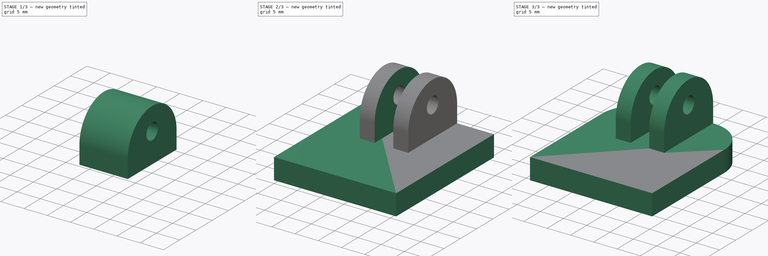
[diagram: build sequence overview — one tinted view per stage of 3, left to right]
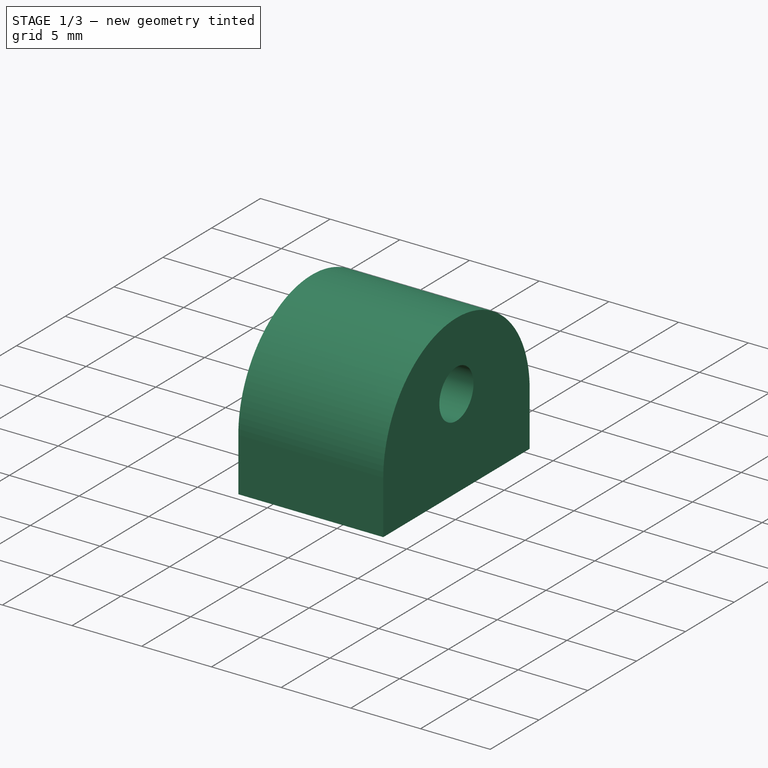
[diagram: stage 1 of 3 — iso view after this stage's code; geometry added in this stage tinted green]
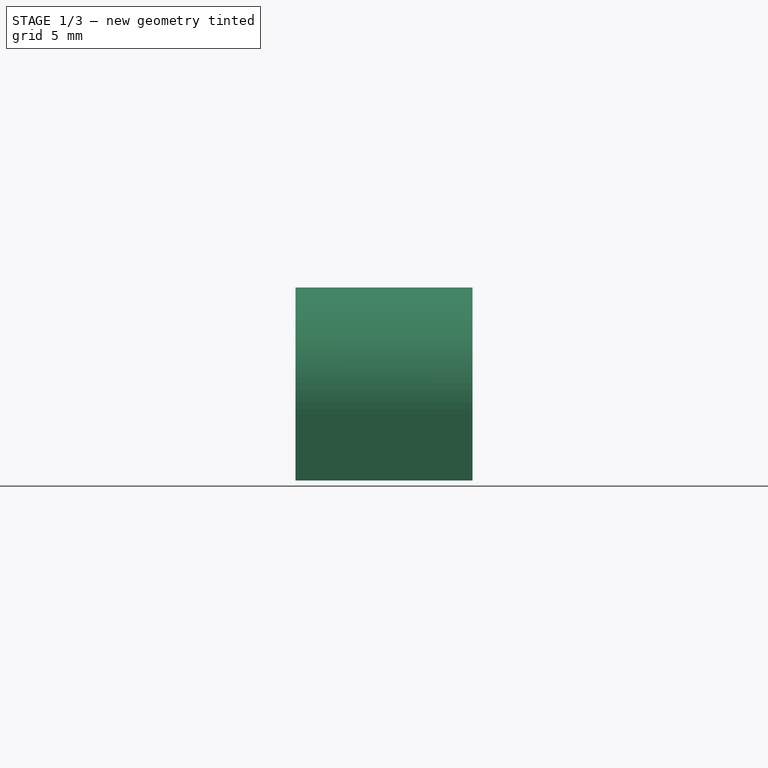
[diagram: stage 1 of 3 — front view after this stage's code; geometry added in this stage tinted green]
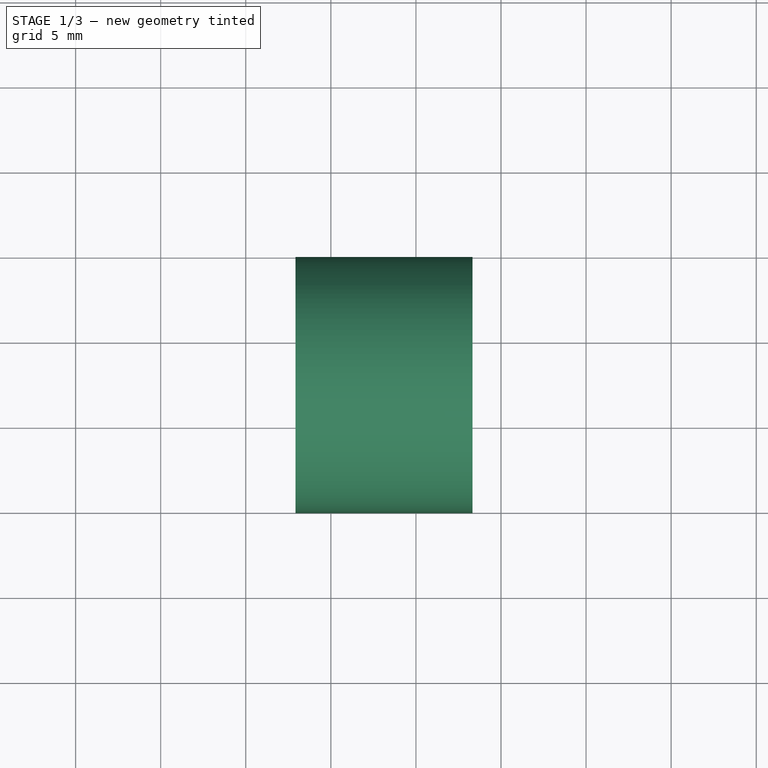
[diagram: stage 1 of 3 — top view after this stage's code; geometry added in this stage tinted green]
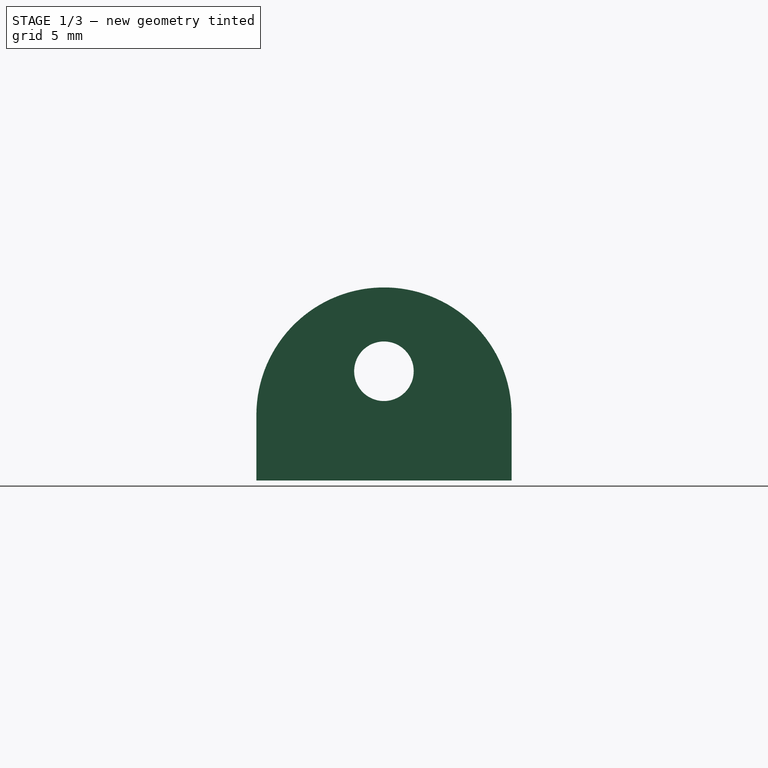
[diagram: stage 1 of 3 — right view after this stage's code; geometry added in this stage tinted green]
FCSTD DOCUMENT  (FreeCAD 0.16R6712 (Git))
Label: tapa_camaraIR
License: CreativeCommons Attribution-ShareAlike
LicenseURL: http://creativecommons.org/licenses/by-sa/4.0/
objects: Part::Feature×3, Part::Box×2, Part::Cut×2, Sketcher::SketchObject×1, PartDesign::Pad×1, Part::FeaturePython×1, Part::MultiFuse×1, Part::Fillet×1
note: 13 computed .brp shape members not serialized (recipe doc carries the construction recipe); baked Part::Feature solids carry a one-line shape summary decoded from their .brp

FEATURE [Part::Feature] Fusion002
  shape: bbox 26.25 x 15 x 15.5 mm, 140 faces (baked)
FEATURE [Sketcher::SketchObject] Sketch001
  Placement = pos=(0,0,0) rot=(0.57735,0.57735,0.57735;2.0944rad)
  sketch-geometry (6):
    g0: ArcOfCircle CenterX=-12.6861 CenterY=10.2241 CenterZ=0 NormalX=0 NormalY=0 NormalZ=1 Radius=7.5 StartAngle=6.28319 EndAngle=9.42478
    g1: LineSegment StartX=-5.18611 StartY=10.2241 StartZ=0 EndX=-5.18611 EndY=6.37409 EndZ=0
    g2: LineSegment StartX=-20.1861 StartY=6.37409 StartZ=0 EndX=-20.1861 EndY=10.2241 EndZ=0
    g3: LineSegment StartX=-20.1861 StartY=6.37409 StartZ=0 EndX=-5.18611 EndY=6.37409 EndZ=0
    g4: Circle CenterX=-12.6907 CenterY=12.7964 CenterZ=0 NormalX=0 NormalY=0 NormalZ=1 Radius=1.75
    g5: LineSegment [constr] StartX=-12.6861 StartY=5.56783 StartZ=0 EndX=-12.6861 EndY=16.7204 EndZ=0
  constraints (16):
    c: Radius(g0) = 7.5
    c: Vertical(g1)
    c: Coincident(g2,g0)
    c: Coincident(g3,g1)
    c: Horizontal(g3)
    c: Coincident(g1,g0)
    c: Equal(g2,g1)
    c: Vertical(g2)
    c: Coincident(g2,g3)
    c: DistanceX(g3,g3) = 15
    c: DistanceY(g1,g0) = 3.85
    c: DistanceX(g1,g-1) = 5.18611
    c: DistanceY(g-1,g1) = 6.37409
    c: Radius(g4) = 1.75
    c: Vertical(g5)
    c: PointOnObject(g0,g5)
FEATURE [PartDesign::Pad] Pad
  Length = 10.4
  Length2 = 100
  Placement = pos=(0,0,0) rot=(0.57735,0.57735,0.57735;2.0944rad)
  Sketch = -> Sketch001
  Type = 0
FEATURE [Part::FeaturePython] Clone  label="Clone of Pad"  # Draft clone (typed FeaturePython)
  Objects = -> [Pad]
  Placement = pos=(7.924,30.1861,-1.87209) rot=(0.57735,0.57735,0.57735;2.0944rad)
  Scale = (1,1,1)
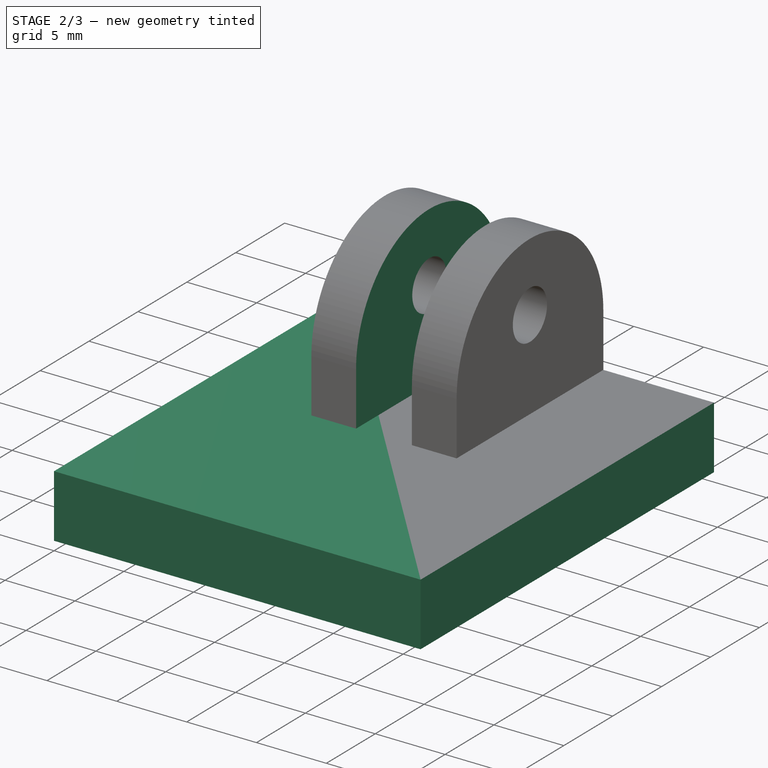
[diagram: stage 2 of 3 — iso view after this stage's code; geometry added in this stage tinted green]
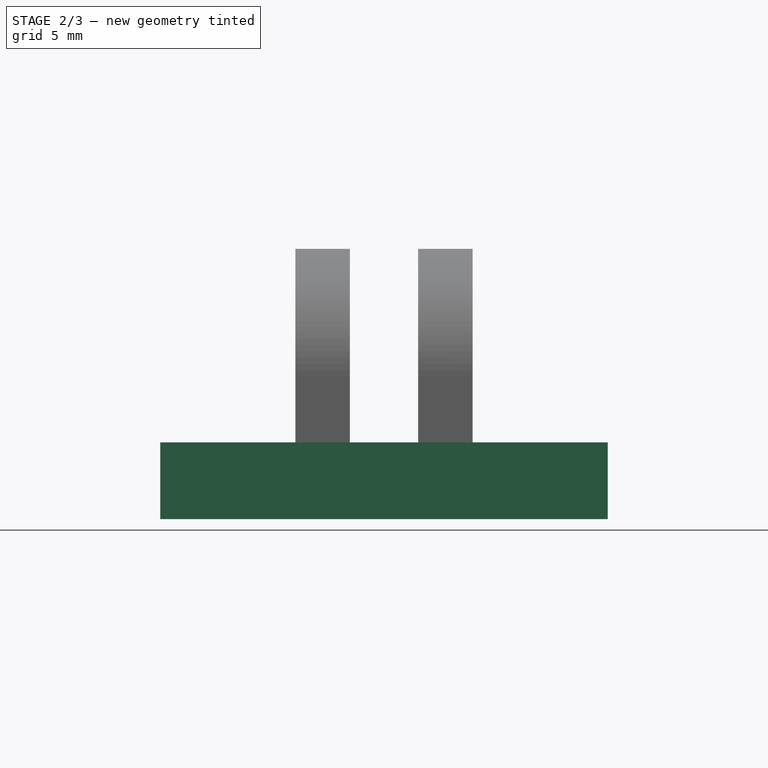
[diagram: stage 2 of 3 — front view after this stage's code; geometry added in this stage tinted green]
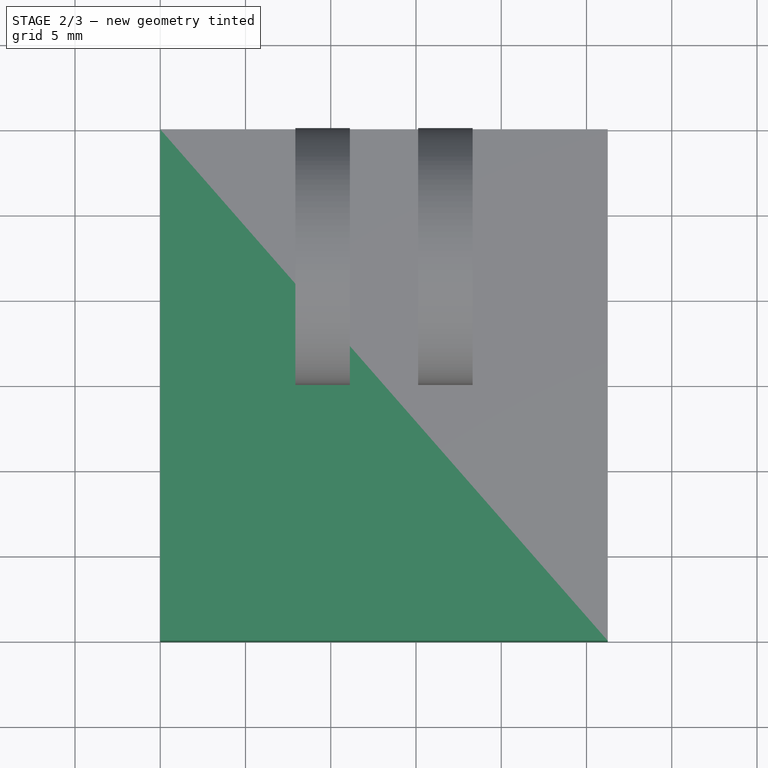
[diagram: stage 2 of 3 — top view after this stage's code; geometry added in this stage tinted green]
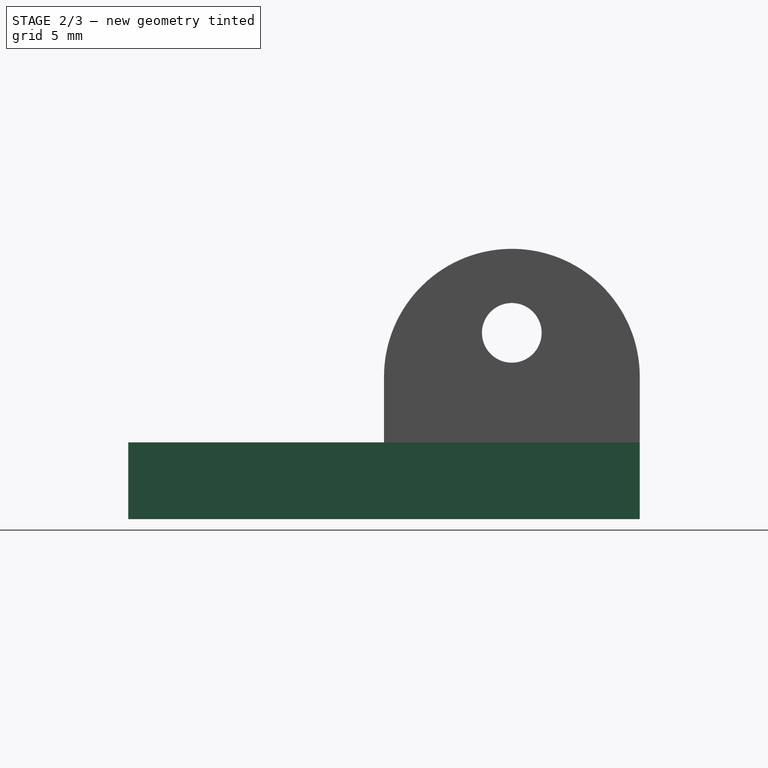
[diagram: stage 2 of 3 — right view after this stage's code; geometry added in this stage tinted green]
FEATURE [Part::Box] Box  label="Cubo"
  Height = 20
  Length = 4
  Placement = pos=(11.124,9,1.502) rot=(0,0,1;0rad)
  Width = 20
FEATURE [Part::Box] Box001  label="Cubo001"
  Height = 4.502
  Length = 26.248
  Placement = pos=(0,-5,0) rot=(0,0,1;0rad)
  Width = 30
FEATURE [Part::Cut] Cut
  Base = -> Clone
  Tool = -> Box
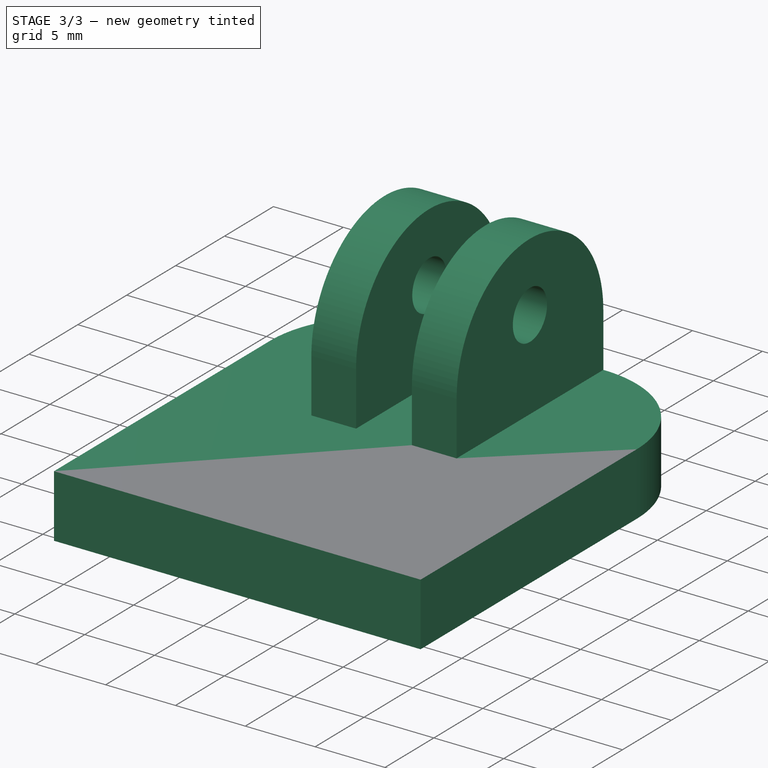
[diagram: stage 3 of 3 — iso view after this stage's code; geometry added in this stage tinted green]
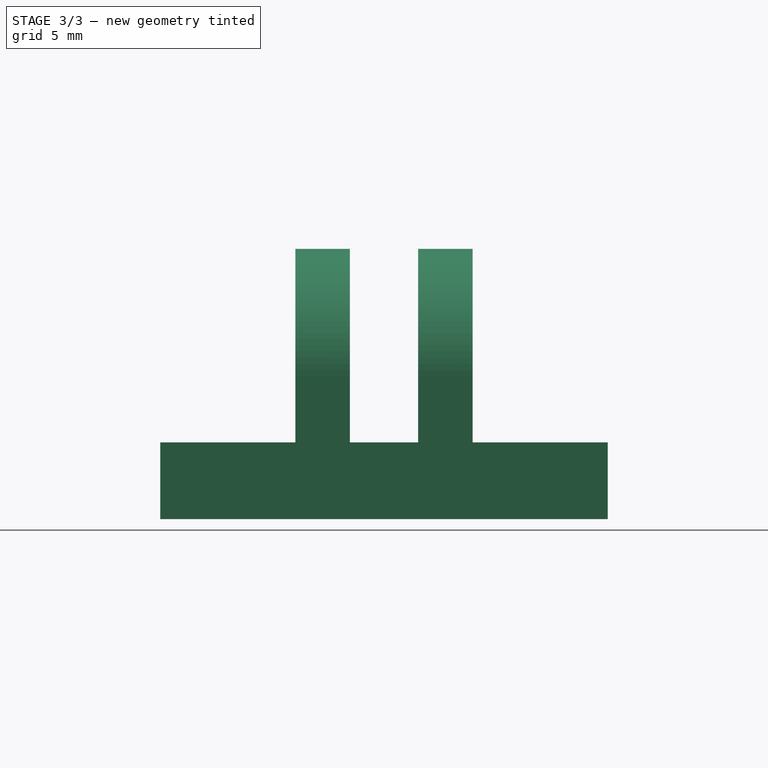
[diagram: stage 3 of 3 — front view after this stage's code; geometry added in this stage tinted green]
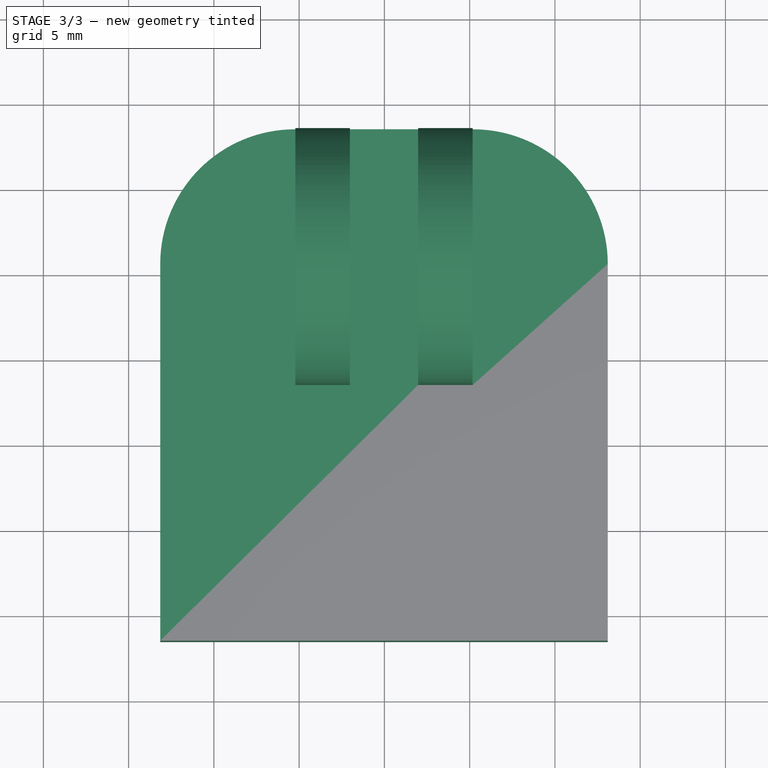
[diagram: stage 3 of 3 — top view after this stage's code; geometry added in this stage tinted green]
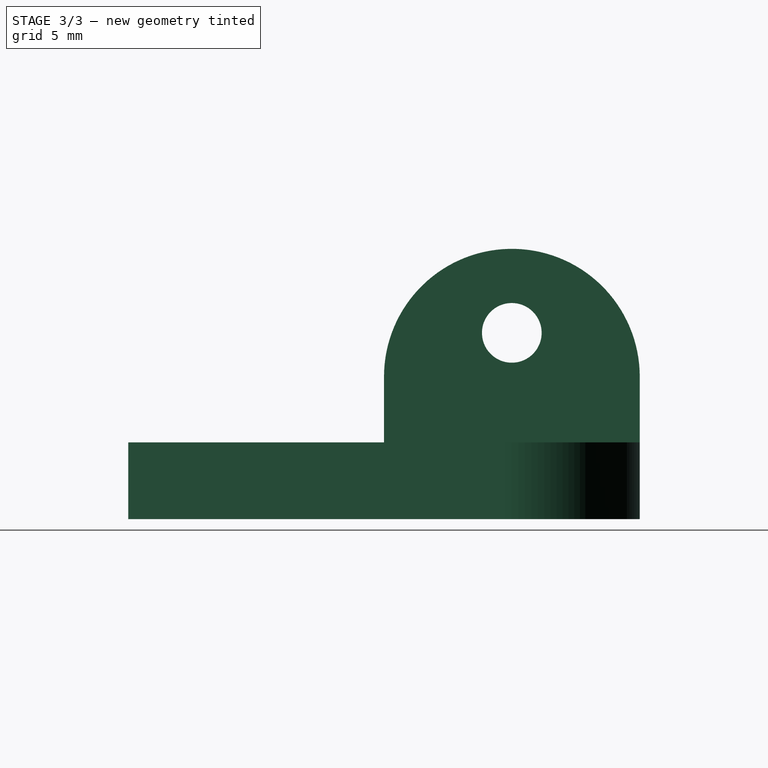
[diagram: stage 3 of 3 — right view after this stage's code; geometry added in this stage tinted green]
FEATURE [Part::MultiFuse] Fusion
  Shapes = -> [Cut,Box001]
FEATURE [Part::Fillet] Fillet
  Base = -> Fusion
  Edges = 2 edges r=7.9: [Edge3,Edge19]
  Placement = pos=(-13.1482,13.5,-1.44958e-07) rot=(0,0,1;0rad)
FEATURE [Part::Feature] Fusion001001  label="Fusion003"
  shape: bbox 76.35 x 34.11 x 4.502 mm, 855 faces (baked)
FEATURE [Part::Cut] Cut001  label="raspiCamTapa"
  Base = -> Fusion001001
  Tool = -> Fillet
FEATURE [Part::Feature] Cut001001  label="csRaspiCamTapa"
  shape: bbox 76.35 x 63.12 x 15.85 mm, 877 faces (baked)
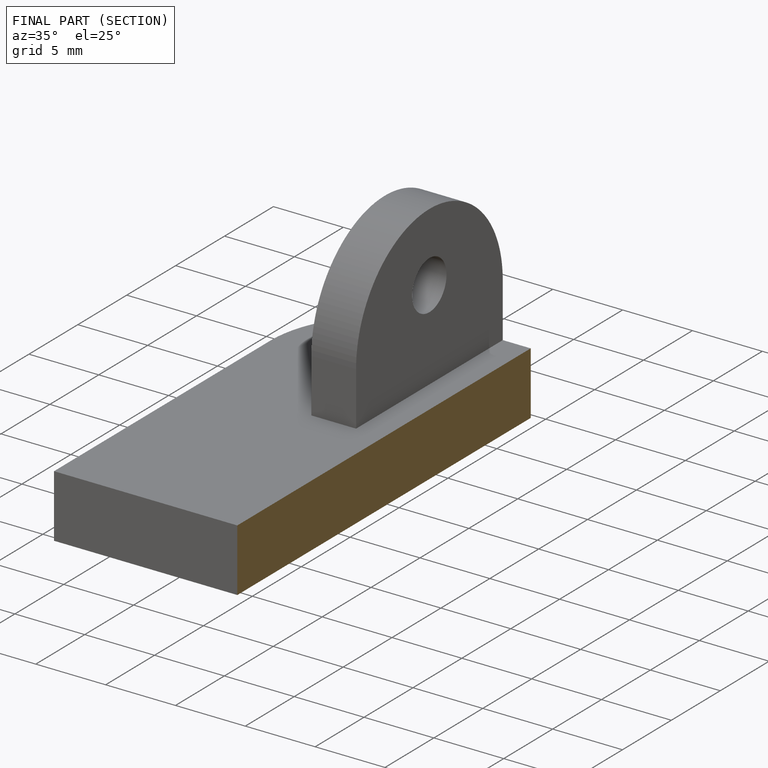
[diagram: finished part — half-section view (interior)]
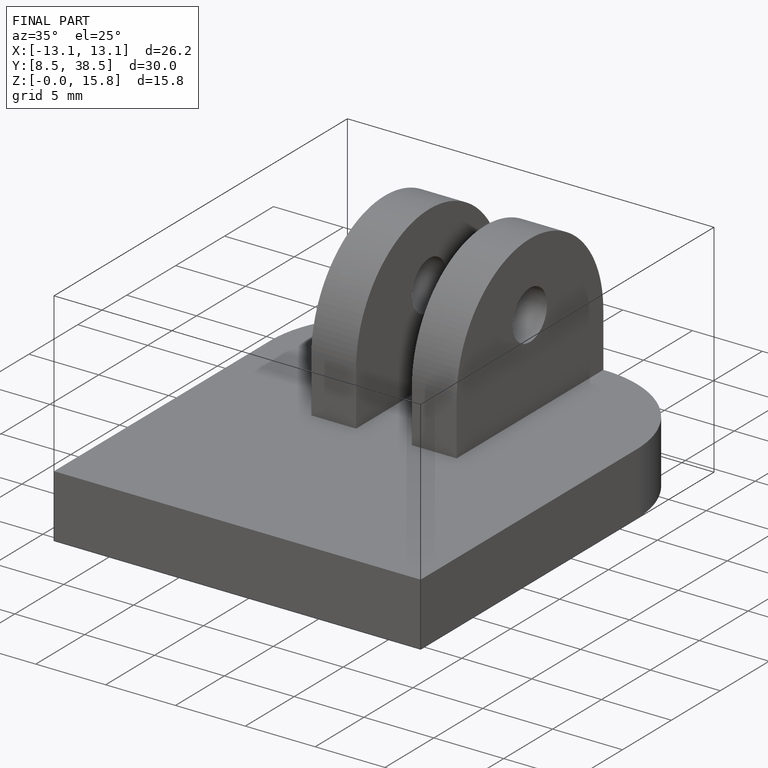
[diagram: finished part — iso view with bounding-box wireframe]
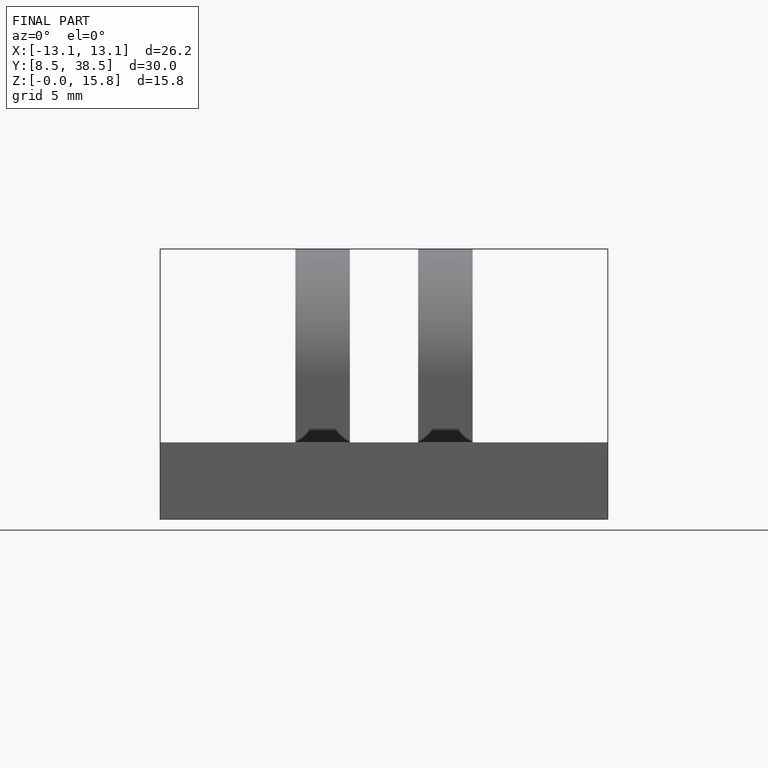
[diagram: finished part — front view with bounding-box wireframe]
